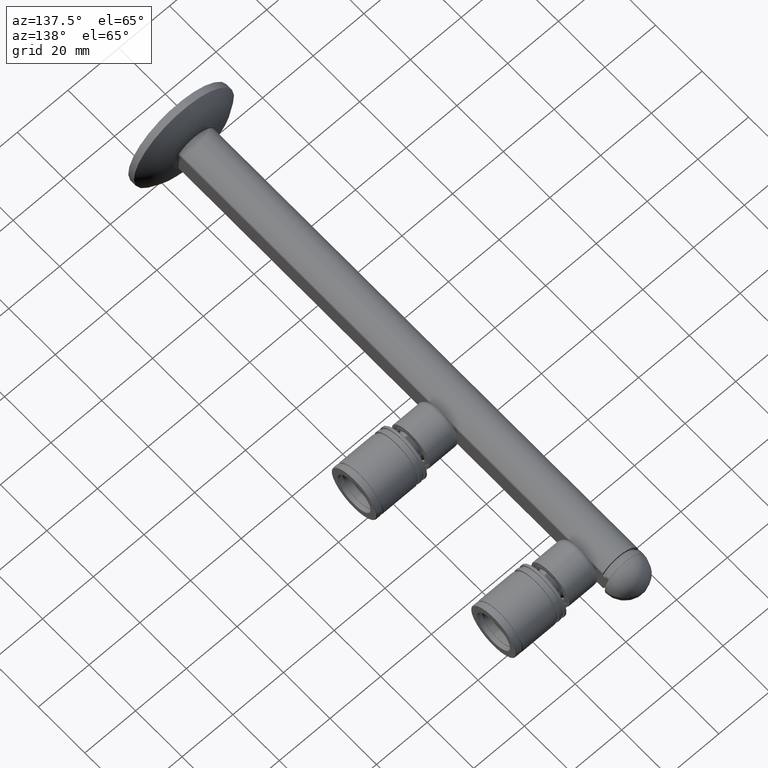
[diagram: clean part render]
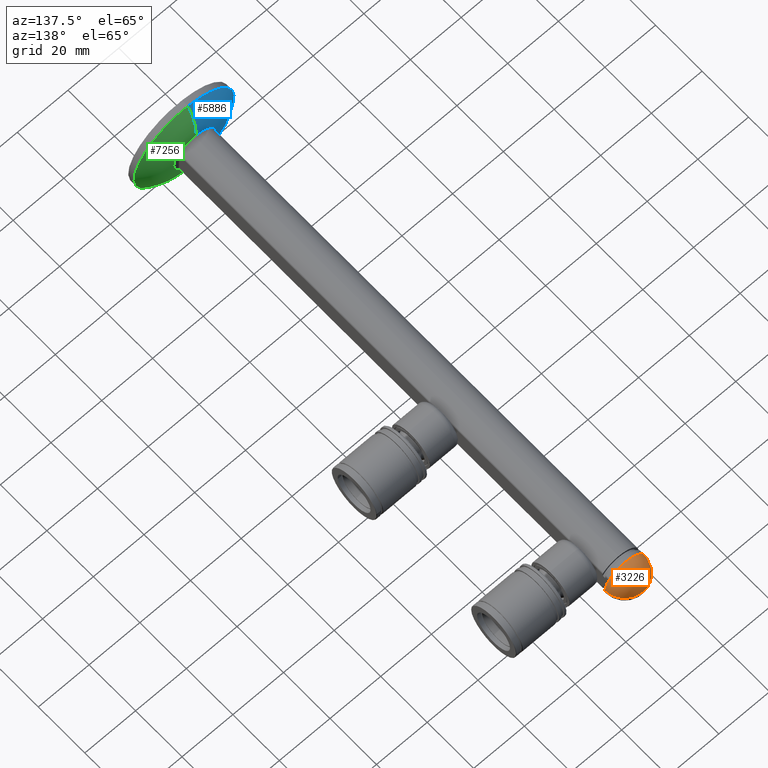
[diagram: same view with three faces highlighted in distinct colors, each labeled with its STEP entity id]
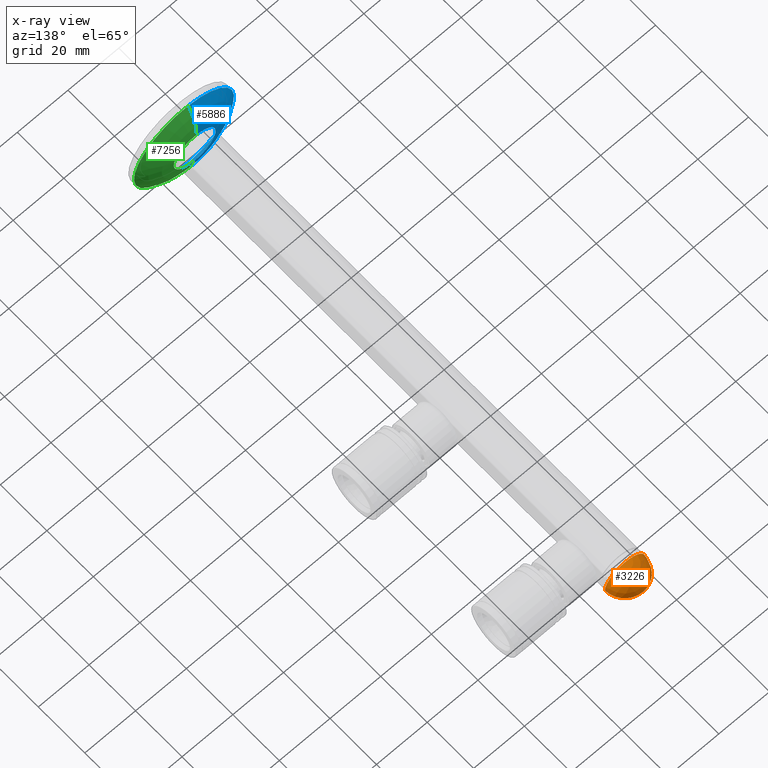
[diagram: x-ray of the same camera — body ghosted, the three highlighted faces saturated]
A machine part, auxiliary view with three faces highlighted in distinct colors.
The next image is the same camera in x-ray (body ghosted, the three faces saturated) — at least one of them is partly hidden behind the body in this view.
Their STEP definitions:

[orange] entity #3226 — the highlighted spherical surface has radius 7.9 mm.
#1226 = CARTESIAN_POINT ( 'NONE',  ( -7.899350729400997473, 0.1012820512820510471, 9.673914586103241511E-16 ) ) ;
#2009 = CARTESIAN_POINT ( 'NONE',  ( 0.000000000000000000, 0.000000000000000000, 0.000000000000000000 ) ) ;
#2012 = DIRECTION ( 'NONE',  ( 0.000000000000000000, 1.000000000000000000, 0.000000000000000000 ) ) ;
#2228 = CIRCLE ( 'NONE', #8225, 7.899350729400997473 ) ;
#2755 = CARTESIAN_POINT ( 'NONE',  ( 7.899350729400997473, 0.1012820512820510471, 0.000000000000000000 ) ) ;
#3226 = ADVANCED_FACE ( 'NONE', ( #7055 ), #18098, .T. ) ;
#3771 = DIRECTION ( 'NONE',  ( 0.000000000000000000, 0.000000000000000000, -1.000000000000000000 ) ) ;
#3977 = CARTESIAN_POINT ( 'NONE',  ( 0.000000000000000000, 0.1012820512820510471, 0.000000000000000000 ) ) ;
#3984 = CARTESIAN_POINT ( 'NONE',  ( 0.000000000000000000, 0.000000000000000000, 0.000000000000000000 ) ) ;
#4601 = AXIS2_PLACEMENT_3D ( 'NONE', #3984, #5251, #11176 ) ;
#4616 = CARTESIAN_POINT ( 'NONE',  ( 4.837354856632045057E-16, 7.900000000000000355, 0.000000000000000000 ) ) ;
#5008 = DIRECTION ( 'NONE',  ( 0.000000000000000000, 0.000000000000000000, 1.000000000000000000 ) ) ;
#5251 = DIRECTION ( 'NONE',  ( 1.224646799147353207E-16, -0.000000000000000000, 1.000000000000000000 ) ) ;
#6647 = VERTEX_POINT ( 'NONE', #11963 ) ;
#6651 = CIRCLE ( 'NONE', #4601, 7.900000000000000355 ) ;
#6699 = AXIS2_PLACEMENT_3D ( 'NONE', #12844, #14136, #11363 ) ;
#6872 = EDGE_CURVE ( 'NONE', #18120, #16781, #18590, .T. ) ;
#7055 = FACE_OUTER_BOUND ( 'NONE', #7875, .T. ) ;
#7393 = ORIENTED_EDGE ( 'NONE', *, *, #18340, .T. ) ;
#7795 = ORIENTED_EDGE ( 'NONE', *, *, #6872, .F. ) ;
#7875 = EDGE_LOOP ( 'NONE', ( #7795, #7393, #11234, #8014 ) ) ;
#8014 = ORIENTED_EDGE ( 'NONE', *, *, #17674, .T. ) ;
#8225 = AXIS2_PLACEMENT_3D ( 'NONE', #3977, #15607, #3771 ) ;
#8751 = CIRCLE ( 'NONE', #17909, 7.899350729400997473 ) ;
#9459 = DIRECTION ( 'NONE',  ( 0.000000000000000000, 0.000000000000000000, -1.000000000000000000 ) ) ;
#10109 = EDGE_CURVE ( 'NONE', #17071, #6647, #2228, .T. ) ;
#10605 = AXIS2_PLACEMENT_3D ( 'NONE', #2009, #5008, #18216 ) ;
#11176 = DIRECTION ( 'NONE',  ( 1.000000000000000000, 0.000000000000000000, -1.224646799147353207E-16 ) ) ;
#11234 = ORIENTED_EDGE ( 'NONE', *, *, #10109, .T. ) ;
#11363 = DIRECTION ( 'NONE',  ( -1.000000000000000000, 0.000000000000000000, 0.000000000000000000 ) ) ;
#11963 = CARTESIAN_POINT ( 'NONE',  ( 9.673914586103243484E-16, 0.1012820512820510471, 7.899350729400997473 ) ) ;
#12844 = CARTESIAN_POINT ( 'NONE',  ( 0.000000000000000000, 0.000000000000000000, 0.000000000000000000 ) ) ;
#14136 = DIRECTION ( 'NONE',  ( 0.000000000000000000, 0.000000000000000000, -1.000000000000000000 ) ) ;
#15607 = DIRECTION ( 'NONE',  ( 0.000000000000000000, 1.000000000000000000, 0.000000000000000000 ) ) ;
#16781 = VERTEX_POINT ( 'NONE', #2755 ) ;
#17071 = VERTEX_POINT ( 'NONE', #1226 ) ;
#17674 = EDGE_CURVE ( 'NONE', #6647, #16781, #8751, .T. ) ;
#17909 = AXIS2_PLACEMENT_3D ( 'NONE', #18279, #2012, #9459 ) ;
#18098 = SPHERICAL_SURFACE ( 'NONE', #10605, 7.900000000000000355 ) ;
#18120 = VERTEX_POINT ( 'NONE', #4616 ) ;
#18216 = DIRECTION ( 'NONE',  ( 1.000000000000000000, 0.000000000000000000, 0.000000000000000000 ) ) ;
#18279 = CARTESIAN_POINT ( 'NONE',  ( 0.000000000000000000, 0.1012820512820510471, 0.000000000000000000 ) ) ;
#18340 = EDGE_CURVE ( 'NONE', #18120, #17071, #6651, .T. ) ;
#18590 = CIRCLE ( 'NONE', #6699, 7.900000000000000355 ) ;

[blue] entity #5886 — the highlighted toroidal blend (fillet) surface has major radius 6.9373 mm and minor (blend) radius 20 mm.
#15 = EDGE_CURVE ( 'NONE', #18150, #13669, #5025, .T. ) ;
#431 = VERTEX_POINT ( 'NONE', #960 ) ;
#960 = CARTESIAN_POINT ( 'NONE',  ( 0.000000000000000000, 7.099783270317301387, -8.253290660141484381 ) ) ;
#970 = AXIS2_PLACEMENT_3D ( 'NONE', #2954, #4486, #16144 ) ;
#2019 = AXIS2_PLACEMENT_3D ( 'NONE', #10759, #3257, #13594 ) ;
#2197 = ORIENTED_EDGE ( 'NONE', *, *, #18801, .F. ) ;
#2954 = CARTESIAN_POINT ( 'NONE',  ( 0.000000000000000000, -12.85687079317557036, 0.000000000000000000 ) ) ;
#3040 = DIRECTION ( 'NONE',  ( -0.000000000000000000, -1.000000000000000000, -0.000000000000000000 ) ) ;
#3187 = DIRECTION ( 'NONE',  ( 0.000000000000000000, 0.000000000000000000, -1.000000000000000000 ) ) ;
#3228 = EDGE_LOOP ( 'NONE', ( #2197, #10101, #11348, #3657 ) ) ;
#3257 = DIRECTION ( 'NONE',  ( 1.000000000000000000, 0.000000000000000000, -1.224646799147353207E-16 ) ) ;
#3657 = ORIENTED_EDGE ( 'NONE', *, *, #15, .T. ) ;
#4486 = DIRECTION ( 'NONE',  ( -0.000000000000000000, -1.000000000000000000, -0.000000000000000000 ) ) ;
#4546 = CARTESIAN_POINT ( 'NONE',  ( 0.000000000000000000, 2.530061589893852769, -19.71388315737321761 ) ) ;
#4824 = DIRECTION ( 'NONE',  ( -1.000000000000000000, 0.000000000000000000, 0.000000000000000000 ) ) ;
#4901 = DIRECTION ( 'NONE',  ( 0.000000000000000000, 1.000000000000000000, 0.000000000000000000 ) ) ;
#5025 = CIRCLE ( 'NONE', #16108, 19.71388315737322117 ) ;
#5786 = AXIS2_PLACEMENT_3D ( 'NONE', #13641, #4824, #5978 ) ;
#5886 = ADVANCED_FACE ( 'NONE', ( #18721 ), #18272, .T. ) ;
#5904 = CARTESIAN_POINT ( 'NONE',  ( 0.000000000000000000, 7.099783270317301387, 0.000000000000000000 ) ) ;
#5978 = DIRECTION ( 'NONE',  ( 0.000000000000000000, 0.000000000000000000, 1.000000000000000000 ) ) ;
#6127 = CARTESIAN_POINT ( 'NONE',  ( 0.000000000000000000, 2.530061589893852769, 0.000000000000000000 ) ) ;
#8869 = AXIS2_PLACEMENT_3D ( 'NONE', #5904, #3040, #10400 ) ;
#10101 = ORIENTED_EDGE ( 'NONE', *, *, #10222, .T. ) ;
#10222 = EDGE_CURVE ( 'NONE', #14781, #431, #12582, .T. ) ;
#10400 = DIRECTION ( 'NONE',  ( 0.000000000000000000, 0.000000000000000000, -1.000000000000000000 ) ) ;
#10737 = CIRCLE ( 'NONE', #2019, 19.99999999999999645 ) ;
#10759 = CARTESIAN_POINT ( 'NONE',  ( 8.495683068134605930E-16, -12.85687079317557036, 6.937251682729772106 ) ) ;
#11140 = CARTESIAN_POINT ( 'NONE',  ( 1.712495494840851792E-15, 7.099783270317301387, 8.253290660141484381 ) ) ;
#11348 = ORIENTED_EDGE ( 'NONE', *, *, #14292, .T. ) ;
#12067 = CARTESIAN_POINT ( 'NONE',  ( 2.414254390744202831E-15, 2.530061589893852769, 19.71388315737321761 ) ) ;
#12582 = CIRCLE ( 'NONE', #8869, 8.253290660141484381 ) ;
#13594 = DIRECTION ( 'NONE',  ( -1.224646799147353207E-16, 0.000000000000000000, -1.000000000000000000 ) ) ;
#13641 = CARTESIAN_POINT ( 'NONE',  ( 0.000000000000000000, -12.85687079317557036, -6.937251682729772106 ) ) ;
#13669 = VERTEX_POINT ( 'NONE', #12067 ) ;
#14292 = EDGE_CURVE ( 'NONE', #431, #18150, #14507, .T. ) ;
#14507 = CIRCLE ( 'NONE', #5786, 19.99999999999999645 ) ;
#14781 = VERTEX_POINT ( 'NONE', #11140 ) ;
#16108 = AXIS2_PLACEMENT_3D ( 'NONE', #6127, #4901, #3187 ) ;
#16144 = DIRECTION ( 'NONE',  ( 0.000000000000000000, 0.000000000000000000, -1.000000000000000000 ) ) ;
#18150 = VERTEX_POINT ( 'NONE', #4546 ) ;
#18272 = TOROIDAL_SURFACE ( 'NONE', #970, 6.937251682729772106, 19.99999999999999645 ) ;
#18721 = FACE_OUTER_BOUND ( 'NONE', #3228, .T. ) ;
#18801 = EDGE_CURVE ( 'NONE', #14781, #13669, #10737, .T. ) ;

[green] entity #7256 — the highlighted toroidal blend (fillet) surface has major radius 6.9373 mm and minor (blend) radius 20 mm.
#431 = VERTEX_POINT ( 'NONE', #960 ) ;
#924 = DIRECTION ( 'NONE',  ( 0.000000000000000000, 0.000000000000000000, -1.000000000000000000 ) ) ;
#960 = CARTESIAN_POINT ( 'NONE',  ( 0.000000000000000000, 7.099783270317301387, -8.253290660141484381 ) ) ;
#987 = EDGE_CURVE ( 'NONE', #431, #14781, #8007, .T. ) ;
#1610 = CIRCLE ( 'NONE', #3020, 19.71388315737322117 ) ;
#2019 = AXIS2_PLACEMENT_3D ( 'NONE', #10759, #3257, #13594 ) ;
#3020 = AXIS2_PLACEMENT_3D ( 'NONE', #9569, #8410, #924 ) ;
#3257 = DIRECTION ( 'NONE',  ( 1.000000000000000000, 0.000000000000000000, -1.224646799147353207E-16 ) ) ;
#3788 = DIRECTION ( 'NONE',  ( 0.000000000000000000, 0.000000000000000000, -1.000000000000000000 ) ) ;
#4258 = AXIS2_PLACEMENT_3D ( 'NONE', #14213, #5397, #3788 ) ;
#4546 = CARTESIAN_POINT ( 'NONE',  ( 0.000000000000000000, 2.530061589893852769, -19.71388315737321761 ) ) ;
#4824 = DIRECTION ( 'NONE',  ( -1.000000000000000000, 0.000000000000000000, 0.000000000000000000 ) ) ;
#5366 = DIRECTION ( 'NONE',  ( -0.000000000000000000, -1.000000000000000000, -0.000000000000000000 ) ) ;
#5397 = DIRECTION ( 'NONE',  ( -0.000000000000000000, -1.000000000000000000, -0.000000000000000000 ) ) ;
#5602 = AXIS2_PLACEMENT_3D ( 'NONE', #11406, #5366, #11215 ) ;
#5786 = AXIS2_PLACEMENT_3D ( 'NONE', #13641, #4824, #5978 ) ;
#5978 = DIRECTION ( 'NONE',  ( 0.000000000000000000, 0.000000000000000000, 1.000000000000000000 ) ) ;
#6019 = EDGE_LOOP ( 'NONE', ( #15517, #11400, #18254, #17545 ) ) ;
#7256 = ADVANCED_FACE ( 'NONE', ( #14484 ), #14015, .T. ) ;
#8007 = CIRCLE ( 'NONE', #5602, 8.253290660141484381 ) ;
#8410 = DIRECTION ( 'NONE',  ( 0.000000000000000000, 1.000000000000000000, 0.000000000000000000 ) ) ;
#9569 = CARTESIAN_POINT ( 'NONE',  ( 0.000000000000000000, 2.530061589893852769, 0.000000000000000000 ) ) ;
#10737 = CIRCLE ( 'NONE', #2019, 19.99999999999999645 ) ;
#10759 = CARTESIAN_POINT ( 'NONE',  ( 8.495683068134605930E-16, -12.85687079317557036, 6.937251682729772106 ) ) ;
#11140 = CARTESIAN_POINT ( 'NONE',  ( 1.712495494840851792E-15, 7.099783270317301387, 8.253290660141484381 ) ) ;
#11215 = DIRECTION ( 'NONE',  ( 0.000000000000000000, 0.000000000000000000, -1.000000000000000000 ) ) ;
#11400 = ORIENTED_EDGE ( 'NONE', *, *, #18801, .T. ) ;
#11406 = CARTESIAN_POINT ( 'NONE',  ( 0.000000000000000000, 7.099783270317301387, 0.000000000000000000 ) ) ;
#12067 = CARTESIAN_POINT ( 'NONE',  ( 2.414254390744202831E-15, 2.530061589893852769, 19.71388315737321761 ) ) ;
#13594 = DIRECTION ( 'NONE',  ( -1.224646799147353207E-16, 0.000000000000000000, -1.000000000000000000 ) ) ;
#13641 = CARTESIAN_POINT ( 'NONE',  ( 0.000000000000000000, -12.85687079317557036, -6.937251682729772106 ) ) ;
#13669 = VERTEX_POINT ( 'NONE', #12067 ) ;
#14015 = TOROIDAL_SURFACE ( 'NONE', #4258, 6.937251682729772106, 19.99999999999999645 ) ;
#14213 = CARTESIAN_POINT ( 'NONE',  ( 0.000000000000000000, -12.85687079317557036, 0.000000000000000000 ) ) ;
#14292 = EDGE_CURVE ( 'NONE', #431, #18150, #14507, .T. ) ;
#14484 = FACE_OUTER_BOUND ( 'NONE', #6019, .T. ) ;
#14507 = CIRCLE ( 'NONE', #5786, 19.99999999999999645 ) ;
#14781 = VERTEX_POINT ( 'NONE', #11140 ) ;
#15517 = ORIENTED_EDGE ( 'NONE', *, *, #987, .T. ) ;
#17545 = ORIENTED_EDGE ( 'NONE', *, *, #14292, .F. ) ;
#18150 = VERTEX_POINT ( 'NONE', #4546 ) ;
#18254 = ORIENTED_EDGE ( 'NONE', *, *, #18365, .T. ) ;
#18365 = EDGE_CURVE ( 'NONE', #13669, #18150, #1610, .T. ) ;
#18801 = EDGE_CURVE ( 'NONE', #14781, #13669, #10737, .T. ) ;